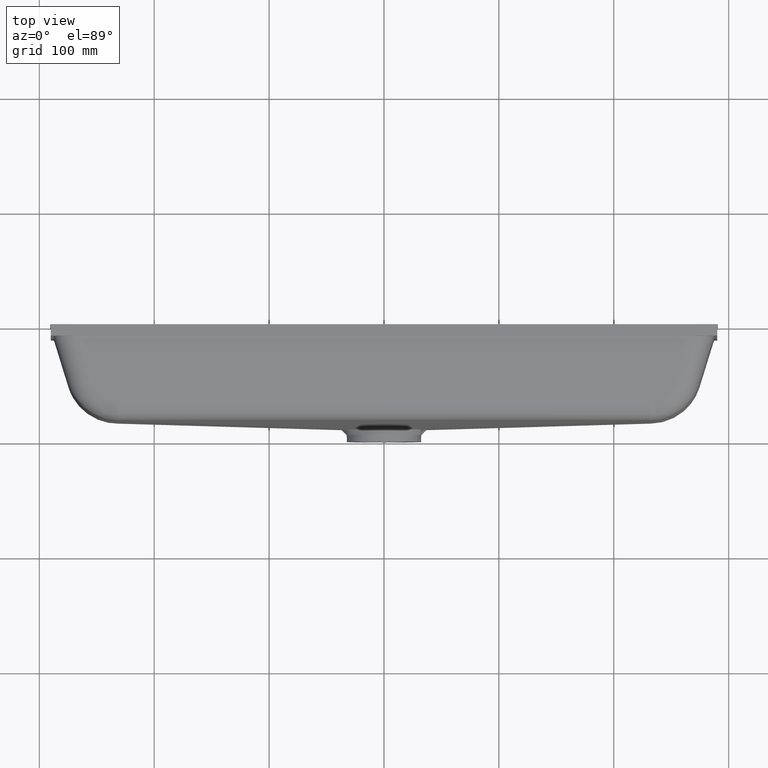
[diagram: clean part render]
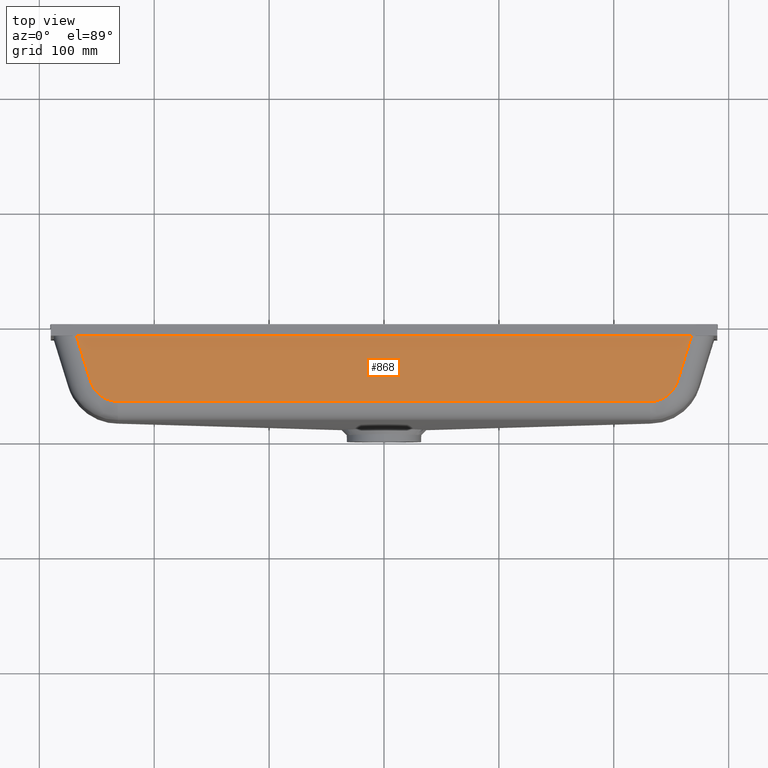
[diagram: same view with one face highlighted and labeled with its STEP entity id]
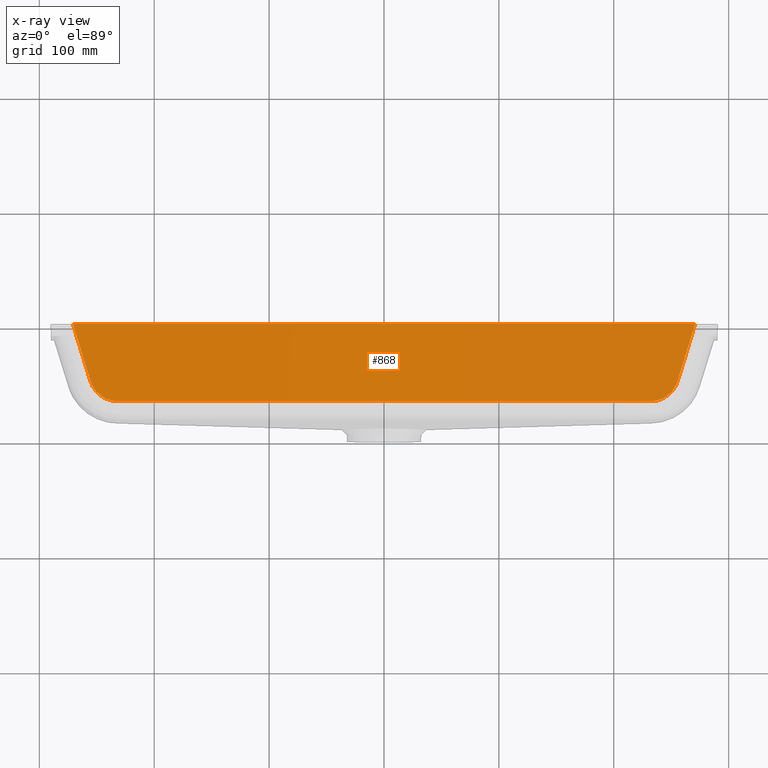
[diagram: x-ray of the same camera — body ghosted, the highlighted face saturated]
A machine part, top view. The second image highlights one B-rep face of the part: STEP entity #868.
The next image is the same camera in x-ray: the body ghosted, the highlighted face saturated — about 0% of this face is hidden behind the body in this view.
In plain terms, the highlighted planar face has unit normal (0, -0.2013, 0.9795).
Its self-contained STEP definition (entity closure, byte-faithful):
#31 = DIRECTION ( 'NONE',  ( 0.2890262232899769000, 0.9377295244519263700, 0.1926841488599843600 ) ) ;
#217 = VECTOR ( 'NONE', #31, 999.9999999999998900 ) ;
#665 = CARTESIAN_POINT ( 'NONE',  ( -243.0445301382211500, -67.02548596699026000, 106.4365663815152600 ) ) ;
#755 = EDGE_LOOP ( 'NONE', ( #2250, #2973, #6265, #4166, #5814, #1306 ) ) ;
#780 = EDGE_CURVE ( 'NONE', #7086, #4411, #896, .T. ) ;
#868 = ADVANCED_FACE ( 'NONE', ( #4453 ), #1835, .T. ) ;
#896 = LINE ( 'NONE', #6141, #3764 ) ;
#1179 = CARTESIAN_POINT ( 'NONE',  ( -270.7765116910904900, 0.0000000000000000000, 120.2089265117187200 ) ) ;
#1306 = ORIENTED_EDGE ( 'NONE', *, *, #780, .T. ) ;
#1517 = LINE ( 'NONE', #4914, #2674 ) ;
#1666 = EDGE_CURVE ( 'NONE', #2166, #4411, #4498, .T. ) ;
#1667 = DIRECTION ( 'NONE',  ( 1.000000000000000000, -0.0000000000000000000, -0.0000000000000000000 ) ) ;
#1835 = PLANE ( 'NONE',  #4582 ) ;
#1966 = CARTESIAN_POINT ( 'NONE',  ( -231.6629002352494800, -67.02548596699028800, 106.4365663815152800 ) ) ;
#2076 = CARTESIAN_POINT ( 'NONE',  ( 280.0000000000000000, -2.012742983495138000, 119.7953491863430000 ) ) ;
#2166 = VERTEX_POINT ( 'NONE', #6526 ) ;
#2250 = ORIENTED_EDGE ( 'NONE', *, *, #1666, .F. ) ;
#2354 = CARTESIAN_POINT ( 'NONE',  ( 252.2014236996337200, -60.26584103894983700, 107.8255345174139800 ) ) ;
#2452 = VERTEX_POINT ( 'NONE', #6474 ) ;
#2490 = CARTESIAN_POINT ( 'NONE',  ( 231.6629002352495100, -67.02548596699026000, 106.4365663815152800 ) ) ;
#2574 = CARTESIAN_POINT ( 'NONE',  ( 231.6629002352495100, -67.02548596699026000, 106.4365663815152800 ) ) ;
#2612 = VERTEX_POINT ( 'NONE', #1179 ) ;
#2634 = DIRECTION ( 'NONE',  ( 0.2890262232899781200, -0.9377295244519258100, -0.1926841488599842500 ) ) ;
#2674 = VECTOR ( 'NONE', #4819, 1000.000000000000000 ) ;
#2759 = CARTESIAN_POINT ( 'NONE',  ( -224.1982151288494500, -151.1206955130483000, 89.15672880355819500 ) ) ;
#2940 = DIRECTION ( 'NONE',  ( 0.0000000000000000000, -0.2012742983495138000, 0.9795349186343032000 ) ) ;
#2964 = EDGE_CURVE ( 'NONE', #2166, #2452, #6336, .T. ) ;
#2973 = ORIENTED_EDGE ( 'NONE', *, *, #2964, .T. ) ;
#3056 = CARTESIAN_POINT ( 'NONE',  ( -255.5538345992263800, -49.38913012027088500, 110.0604751171425300 ) ) ;
#3542 = CARTESIAN_POINT ( 'NONE',  ( 243.0445301382212100, -67.02548596699026000, 106.4365663815152600 ) ) ;
#3764 = VECTOR ( 'NONE', #1667, 1000.000000000000000 ) ;
#4166 = ORIENTED_EDGE ( 'NONE', *, *, #5139, .T. ) ;
#4270 = CARTESIAN_POINT ( 'NONE',  ( -252.2014236996335500, -60.26584103894985800, 107.8255345174139800 ) ) ;
#4365 = DIRECTION ( 'NONE',  ( -1.000000000000000000, 0.0000000000000000000, 0.0000000000000000000 ) ) ;
#4411 = VERTEX_POINT ( 'NONE', #2574 ) ;
#4453 = FACE_OUTER_BOUND ( 'NONE', #755, .T. ) ;
#4498 =( BOUNDED_CURVE ( )  B_SPLINE_CURVE ( 3, ( #4732, #2354, #3542, #2490 ),
 .UNSPECIFIED., .F., .F. ) 
 B_SPLINE_CURVE_WITH_KNOTS ( ( 4, 4 ),
 ( 1.869776490297729200, 3.141592653589793100 ),
 .UNSPECIFIED. ) 
 CURVE ( )  GEOMETRIC_REPRESENTATION_ITEM ( )  RATIONAL_B_SPLINE_CURVE ( ( 1.000000000000000000, 0.8696884739985921700, 0.8696884739985921700, 1.000000000000000000 ) ) 
 REPRESENTATION_ITEM ( '' )  );
#4563 = LINE ( 'NONE', #2759, #5084 ) ;
#4582 = AXIS2_PLACEMENT_3D ( 'NONE', #2076, #2940, #4365 ) ;
#4701 = CARTESIAN_POINT ( 'NONE',  ( 258.7264936652140900, -39.09561403951126800, 112.1755811611341900 ) ) ;
#4732 = CARTESIAN_POINT ( 'NONE',  ( 255.5538345992265500, -49.38913012027084900, 110.0604751171425300 ) ) ;
#4819 = DIRECTION ( 'NONE',  ( 1.000000000000000000, 0.0000000000000000000, 0.0000000000000000000 ) ) ;
#4882 = EDGE_CURVE ( 'NONE', #2612, #2452, #1517, .T. ) ;
#4914 = CARTESIAN_POINT ( 'NONE',  ( 280.0000000000000000, 0.0000000000000000000, 120.2089265117187200 ) ) ;
#4940 = CARTESIAN_POINT ( 'NONE',  ( -231.6629002352494800, -67.02548596699028800, 106.4365663815152800 ) ) ;
#5084 = VECTOR ( 'NONE', #2634, 1000.000000000000200 ) ;
#5139 = EDGE_CURVE ( 'NONE', #2612, #6272, #4563, .T. ) ;
#5814 = ORIENTED_EDGE ( 'NONE', *, *, #6131, .F. ) ;
#6100 =( BOUNDED_CURVE ( )  B_SPLINE_CURVE ( 3, ( #4940, #665, #4270, #6786 ),
 .UNSPECIFIED., .F., .F. ) 
 B_SPLINE_CURVE_WITH_KNOTS ( ( 4, 4 ),
 ( 0.0000000000000000000, 1.271816163292061900 ),
 .UNSPECIFIED. ) 
 CURVE ( )  GEOMETRIC_REPRESENTATION_ITEM ( )  RATIONAL_B_SPLINE_CURVE ( ( 1.000000000000000000, 0.8696884739985926100, 0.8696884739985926100, 1.000000000000000000 ) ) 
 REPRESENTATION_ITEM ( '' )  );
#6131 = EDGE_CURVE ( 'NONE', #7086, #6272, #6100, .T. ) ;
#6141 = CARTESIAN_POINT ( 'NONE',  ( 280.0000000000000000, -67.02548596699028800, 106.4365663815152800 ) ) ;
#6265 = ORIENTED_EDGE ( 'NONE', *, *, #4882, .F. ) ;
#6272 = VERTEX_POINT ( 'NONE', #3056 ) ;
#6336 = LINE ( 'NONE', #4701, #217 ) ;
#6474 = CARTESIAN_POINT ( 'NONE',  ( 270.7765116910908300, 0.0000000000000000000, 120.2089265117186700 ) ) ;
#6526 = CARTESIAN_POINT ( 'NONE',  ( 255.5538345992265500, -49.38913012027084900, 110.0604751171425300 ) ) ;
#6786 = CARTESIAN_POINT ( 'NONE',  ( -255.5538345992263800, -49.38913012027088500, 110.0604751171425300 ) ) ;
#7086 = VERTEX_POINT ( 'NONE', #1966 ) ;